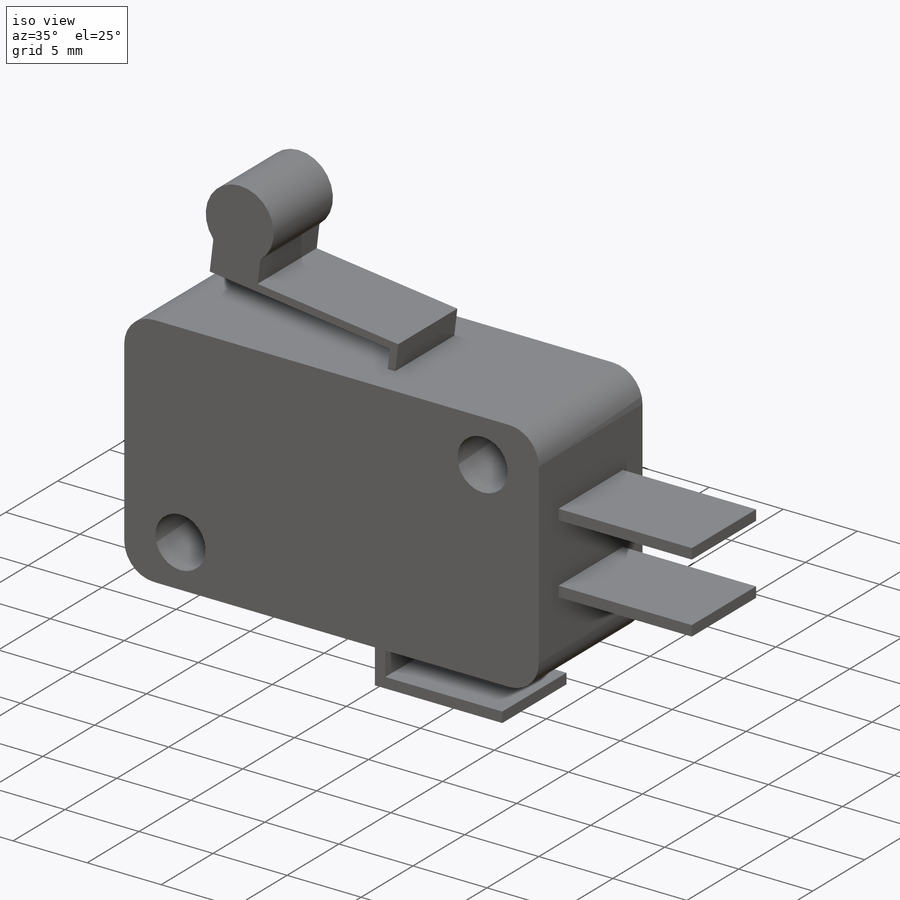
[diagram: iso view]
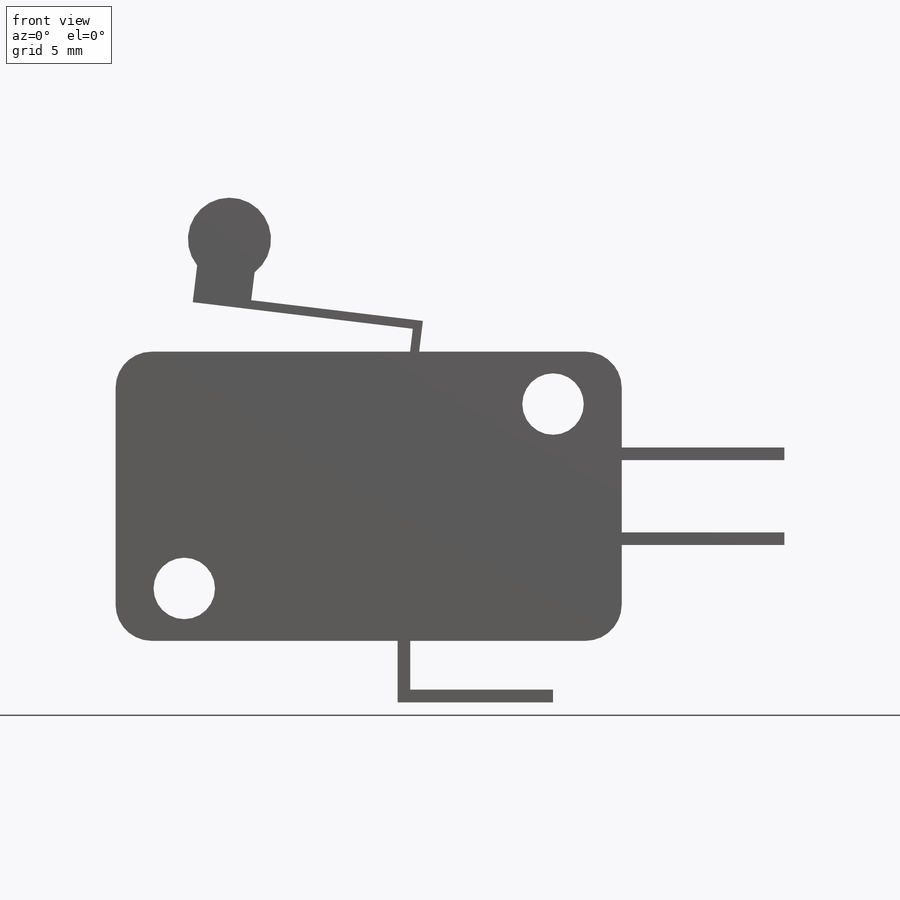
[diagram: front view]
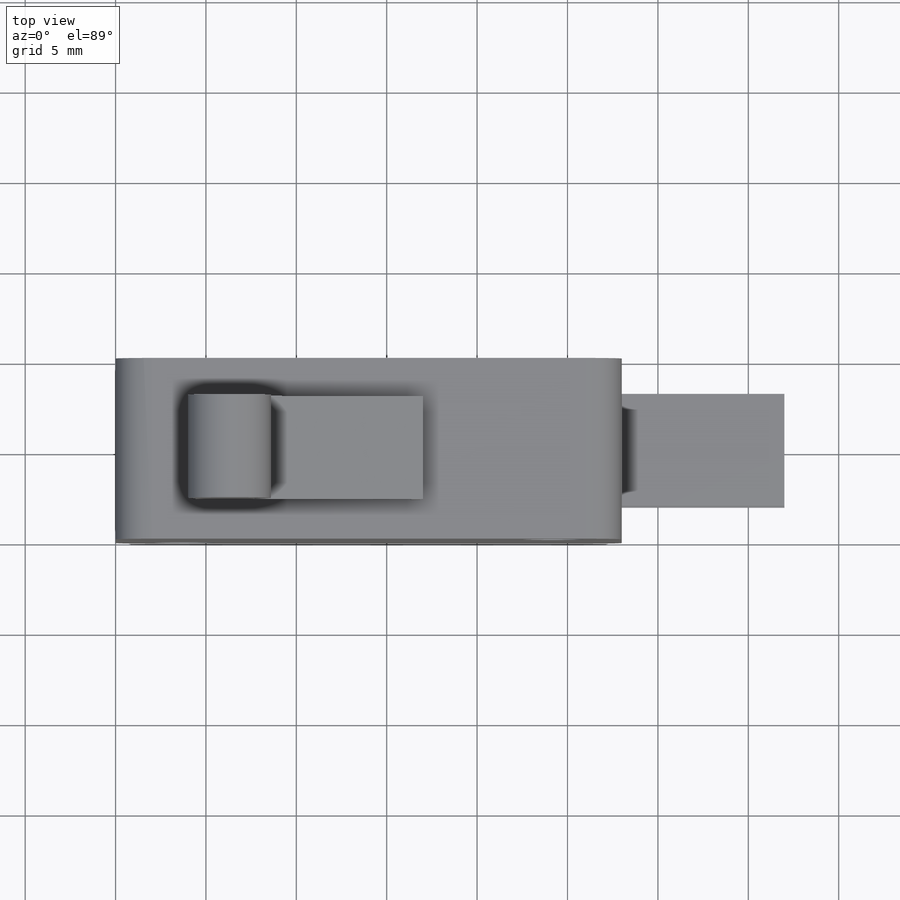
[diagram: top view]
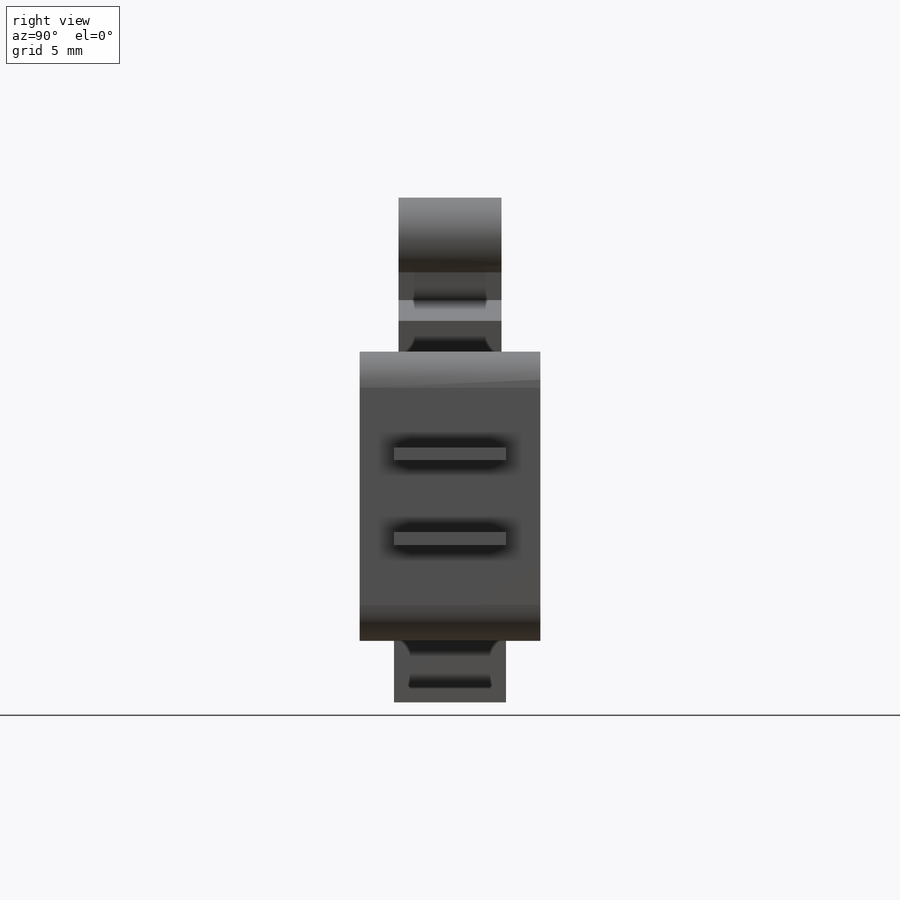
[diagram: right view]
SOLIDWORKS PART (.sldprt)
format: sldprt  version: not decoded by parser v0  size: 380,928 bytes
history: native  units: mm
features: sketch x4, extrude x3, material x1, plane x1 (+12 scaffold rows collapsed)
feature tree (21):
  scaffold x12  (default folders/planes/origin — collapsed)
  material  "Material <not specified>"
  sketch  "Sketch1"  dims[D3=2.0mm D4=3.4mm D1=28.0mm D2=16.0mm D5=1.2mm]
  extrude  "Boss-Extrude1"  Depth=10mm
  sketch  "Sketch2"  dims[c1.D3=4.6mm c1.D7=4.6mm c1.D1=0.5mm c1.D2=0.5mm c1.D4=6.0mm c1.D5=17.7mm c1.D6=17.0mm c2.D7=24.5mm c2.D8=24.0mm c2.D9=3.2mm]
  extrude  "Boss-Extrude2"  Depth=5.7mm
  sketch  "Sketch3"  dims[D1=0.7mm D2=9.0mm D3=6.0mm D4=0.7mm D5=8.6mm D6=0.7mm D7=3.4mm D8=12.4mm]
  extrude  "Boss-Extrude3"  Depth=6.2mm
  sketch  "Sketch4"  dims[D2=4.6mm D1=22.0mm D3=6.5mm]
  plane  "Plane1"
decode coverage: 7 of 7 modeling features carry decoded parameters
note: suppression state not decoded; provenance and decode notes live in map.json
